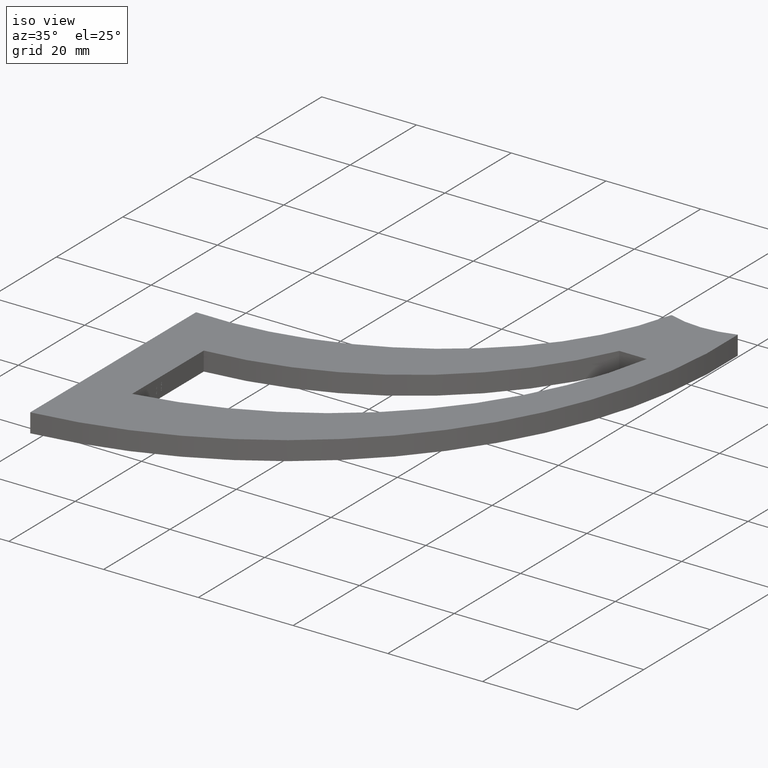
[diagram: clean part render]
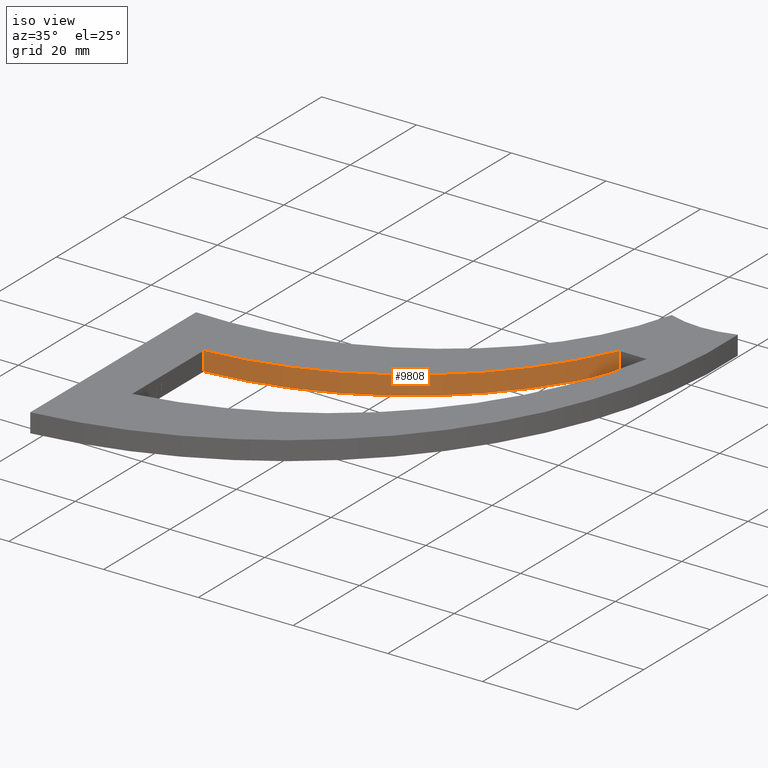
[diagram: same view with one face highlighted and labeled with its STEP entity id]
A machine part, iso view. The second image highlights one B-rep face of the part: STEP entity #9808.
In plain terms, the highlighted cylindrical surface (partial cylindrical patch) has radius 70 mm, axis along (-0, -0, -1).
Its self-contained STEP definition (entity closure, byte-faithful):
#103 = VERTEX_POINT ( 'NONE', #4812 ) ;
#188 = DIRECTION ( 'NONE',  ( -0.000000000000000000, 0.000000000000000000, 1.000000000000000000 ) ) ;
#350 = CARTESIAN_POINT ( 'NONE',  ( 5.180452133363093736, 82.72691493104838401, 2.000000000000000000 ) ) ;
#409 = CARTESIAN_POINT ( 'NONE',  ( 69.01433309437241803, 54.00000000000000711, 2.000000000000000000 ) ) ;
#435 = VECTOR ( 'NONE', #566, 1000.000000000000000 ) ;
#566 = DIRECTION ( 'NONE',  ( -0.000000000000000000, -0.000000000000000000, -1.000000000000000000 ) ) ;
#639 = VECTOR ( 'NONE', #4009, 1000.000000000000000 ) ;
#2259 = CIRCLE ( 'NONE', #3148, 70.00000000000000000 ) ;
#2353 = EDGE_CURVE ( 'NONE', #103, #9888, #6405, .T. ) ;
#2374 = EDGE_LOOP ( 'NONE', ( #4919, #9393, #7277, #2895 ) ) ;
#2895 = ORIENTED_EDGE ( 'NONE', *, *, #2353, .T. ) ;
#2990 = CARTESIAN_POINT ( 'NONE',  ( 5.180452133363093736, 82.72691493104838401, -2.000000000000000000 ) ) ;
#3148 = AXIS2_PLACEMENT_3D ( 'NONE', #2990, #188, #3906 ) ;
#3168 = DIRECTION ( 'NONE',  ( -0.000000000000000000, -0.000000000000000000, -1.000000000000000000 ) ) ;
#3652 = CARTESIAN_POINT ( 'NONE',  ( 5.180452133363093736, 82.72691493104838401, 2.000000000000000000 ) ) ;
#3787 = LINE ( 'NONE', #8381, #639 ) ;
#3906 = DIRECTION ( 'NONE',  ( 1.000000000000000000, 0.000000000000000000, 0.000000000000000000 ) ) ;
#4009 = DIRECTION ( 'NONE',  ( -0.000000000000000000, -0.000000000000000000, -1.000000000000000000 ) ) ;
#4154 = EDGE_CURVE ( 'NONE', #103, #8905, #9914, .T. ) ;
#4812 = CARTESIAN_POINT ( 'NONE',  ( 10.09999999999999787, 12.90000000000000391, 2.000000000000000000 ) ) ;
#4919 = ORIENTED_EDGE ( 'NONE', *, *, #9257, .T. ) ;
#5170 = AXIS2_PLACEMENT_3D ( 'NONE', #3652, #8020, #7151 ) ;
#5519 = FACE_OUTER_BOUND ( 'NONE', #2374, .T. ) ;
#5757 = DIRECTION ( 'NONE',  ( -1.000000000000000000, 0.000000000000000000, 0.000000000000000000 ) ) ;
#6405 = LINE ( 'NONE', #9593, #435 ) ;
#6557 = AXIS2_PLACEMENT_3D ( 'NONE', #350, #3168, #5757 ) ;
#7151 = DIRECTION ( 'NONE',  ( 1.000000000000000000, 0.000000000000000000, 0.000000000000000000 ) ) ;
#7277 = ORIENTED_EDGE ( 'NONE', *, *, #4154, .F. ) ;
#7554 = CARTESIAN_POINT ( 'NONE',  ( 69.01433309437241803, 54.00000000000000711, -2.000000000000000000 ) ) ;
#8020 = DIRECTION ( 'NONE',  ( -0.000000000000000000, 0.000000000000000000, 1.000000000000000000 ) ) ;
#8381 = CARTESIAN_POINT ( 'NONE',  ( 69.01433309437241803, 54.00000000000000711, 2.000000000000000000 ) ) ;
#8905 = VERTEX_POINT ( 'NONE', #409 ) ;
#9257 = EDGE_CURVE ( 'NONE', #9888, #9287, #2259, .T. ) ;
#9287 = VERTEX_POINT ( 'NONE', #7554 ) ;
#9393 = ORIENTED_EDGE ( 'NONE', *, *, #11439, .F. ) ;
#9593 = CARTESIAN_POINT ( 'NONE',  ( 10.09999999999999787, 12.90000000000000391, 2.000000000000000000 ) ) ;
#9808 = ADVANCED_FACE ( 'NONE', ( #5519 ), #11025, .T. ) ;
#9888 = VERTEX_POINT ( 'NONE', #10558 ) ;
#9914 = CIRCLE ( 'NONE', #5170, 69.99999999999998579 ) ;
#10558 = CARTESIAN_POINT ( 'NONE',  ( 10.09999999999999787, 12.90000000000000391, -2.000000000000000000 ) ) ;
#11025 = CYLINDRICAL_SURFACE ( 'NONE', #6557, 70.00000000000000000 ) ;
#11439 = EDGE_CURVE ( 'NONE', #8905, #9287, #3787, .T. ) ;